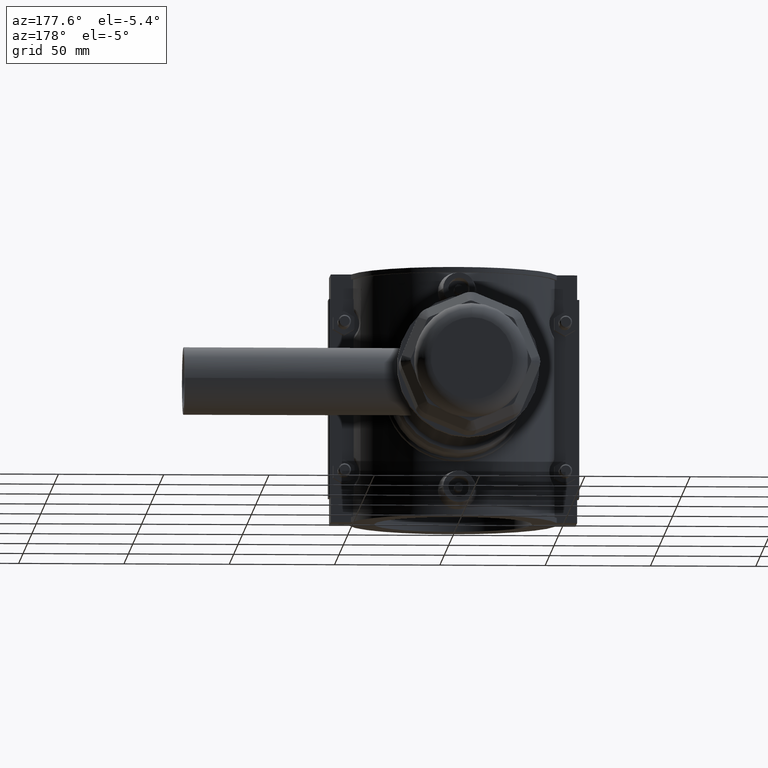
[diagram: clean part render]
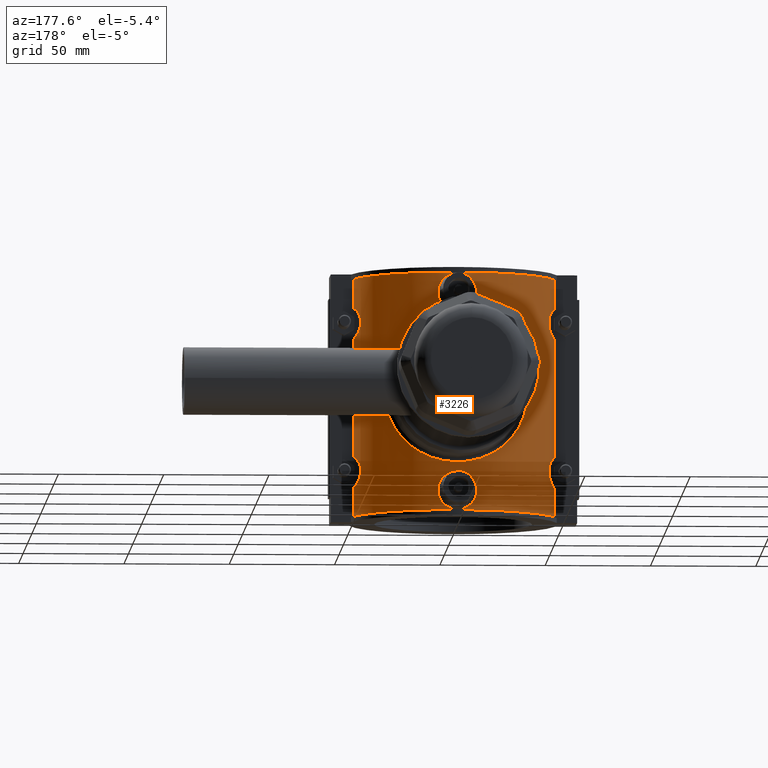
[diagram: same view with one face highlighted and labeled with its STEP entity id]
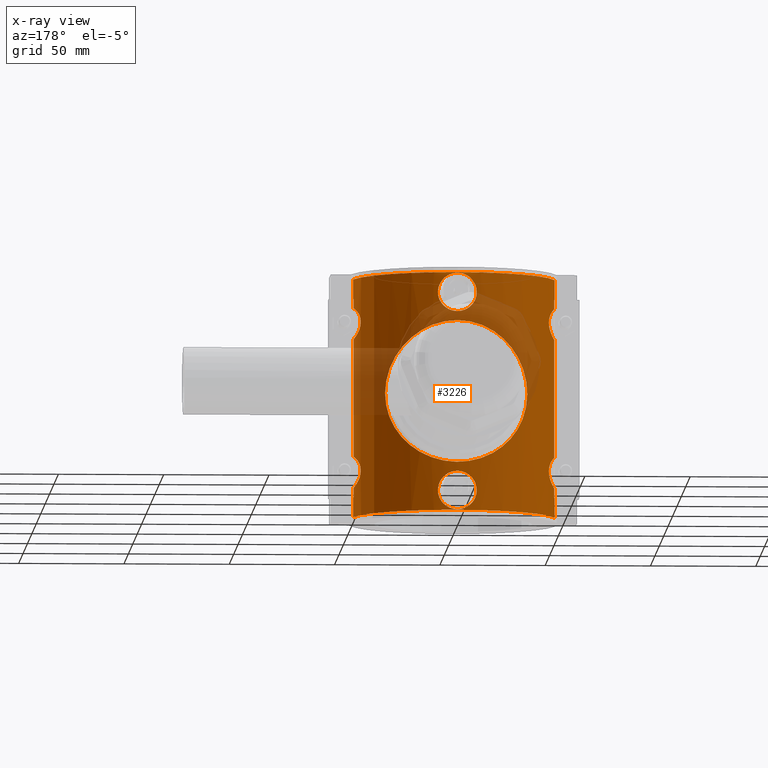
[diagram: x-ray of the same camera — body ghosted, the highlighted face saturated]
A machine part, auxiliary view. The second image highlights one B-rep face of the part: STEP entity #3226.
The next image is the same camera in x-ray: the body ghosted, the highlighted face saturated — about 21% of this face is hidden behind the body in this view.
In plain terms, the highlighted cylindrical surface (partial cylindrical patch) has radius 48.75 mm, axis along (0, 0, 1).
Its self-contained STEP definition (entity closure, byte-faithful):
#112=LINE('',#5452,#399);
#132=LINE('',#5535,#419);
#136=LINE('',#5543,#423);
#137=LINE('',#5547,#424);
#138=LINE('',#5563,#425);
#139=LINE('',#5577,#426);
#140=LINE('',#5580,#427);
#141=LINE('',#5584,#428);
#142=LINE('',#5600,#429);
#143=LINE('',#5614,#430);
#399=VECTOR('',#3977,9.43999999999999);
#419=VECTOR('',#4025,9.43999999999999);
#423=VECTOR('',#4031,9.43999999999999);
#424=VECTOR('',#4034,4.46607892172985);
#425=VECTOR('',#4035,56.1321578434597);
#426=VECTOR('',#4036,4.46607892172984);
#427=VECTOR('',#4039,9.43999999999999);
#428=VECTOR('',#4042,4.46607892172984);
#429=VECTOR('',#4043,56.1321578434597);
#430=VECTOR('',#4044,4.46607892172985);
#640=FACE_BOUND('',#1057,.T.);
#641=FACE_BOUND('',#1058,.T.);
#642=FACE_BOUND('',#1059,.T.);
#688=B_SPLINE_CURVE_WITH_KNOTS('',3,(#5354,#5355,#5356,#5357,#5358,#5359,
#5360,#5361,#5362,#5363,#5364,#5365,#5366,#5367,#5368,#5369,#5370,#5371,
#5372,#5373,#5374,#5375,#5376,#5377,#5378,#5379,#5380,#5381,#5382,#5383,
#5384,#5385,#5386,#5387,#5388,#5389,#5390,#5391,#5392,#5393,#5394,#5395,
#5396,#5397,#5398,#5399,#5400,#5401,#5402,#5403,#5404,#5405,#5406,#5407,
#5408,#5409,#5410,#5411,#5412,#5413,#5414,#5415,#5416,#5417,#5418,#5419),
 .UNSPECIFIED.,.T.,.F.,(4,2,2,2,2,2,2,2,2,2,2,2,2,2,2,2,2,2,2,2,2,2,2,2,
2,2,2,2,2,2,2,2,4),(0.,0.66949136751511,1.33898273503022,2.00847410254533,
2.67796547006044,3.33845650926445,3.99894754846846,4.65943858767247,5.31992962687648,
5.98042066608049,6.64091170528449,7.3014027444885,7.96189378369251,8.63138515120762,
9.30087651872273,9.97036788623784,10.639859253753,11.3093506212681,11.9788419887832,
12.6483333562983,13.3178247238134,13.9783157630174,14.6388068022214,15.2992978414254,
15.9597888806294,16.6202799198334,17.2807709590374,17.9412619982415,18.6017530374455,
19.2712444049606,19.9407357724757,20.6102271399908,21.2797185075059),
 .UNSPECIFIED.);
#691=B_SPLINE_CURVE_WITH_KNOTS('',3,(#5549,#5550,#5551,#5552,#5553,#5554,
#5555,#5556,#5557,#5558,#5559,#5560,#5561),.UNSPECIFIED.,.F.,.F.,(4,1,1,
1,1,1,1,1,1,1,4),(-2.87459084305855,-2.52228414702193,-2.1699774509853,
-1.81767075494868,-1.64151740693037,-1.46536405891206,-1.3772873849029,
-1.28921071089374,-1.11305736287543,-0.760750666838809,-0.408443970802186),
 .UNSPECIFIED.);
#692=B_SPLINE_CURVE_WITH_KNOTS('',3,(#5565,#5566,#5567,#5568,#5569,#5570,
#5571,#5572,#5573,#5574,#5575),.UNSPECIFIED.,.F.,.F.,(4,1,1,1,1,1,1,1,4),
(-2.87459084019103,-2.52228414404224,-2.16997744789344,-1.81767075174464,
-1.64151740367024,-1.46536405559584,-1.11305735944705,-0.76075066329825,
-0.408443967149453),.UNSPECIFIED.);
#693=B_SPLINE_CURVE_WITH_KNOTS('',3,(#5586,#5587,#5588,#5589,#5590,#5591,
#5592,#5593,#5594,#5595,#5596,#5597,#5598),.UNSPECIFIED.,.F.,.F.,(4,1,1,
1,1,1,1,1,1,1,4),(-2.8743224957808,-2.52201581927009,-2.16970914275938,
-1.81740246624867,-1.64124912799332,-1.46509578973796,-1.37701912061029,
-1.28894245148261,-1.11278911322726,-0.760482436716547,-0.408175760205838),
 .UNSPECIFIED.);
#694=B_SPLINE_CURVE_WITH_KNOTS('',3,(#5602,#5603,#5604,#5605,#5606,#5607,
#5608,#5609,#5610,#5611,#5612),.UNSPECIFIED.,.F.,.F.,(4,1,1,1,1,1,1,1,4),
(-2.87458979130142,-2.5222830951395,-2.16997639897759,-1.81766970281568,
-1.64151635473472,-1.46536300665376,-1.11305631049185,-0.760749614329938,
-0.408442918168025),.UNSPECIFIED.);
#695=B_SPLINE_CURVE_WITH_KNOTS('',3,(#5617,#5618,#5619,#5620,#5621,#5622,
#5623,#5624,#5625,#5626,#5627,#5628,#5629,#5630,#5631,#5632,#5633,#5634,
#5635,#5636,#5637,#5638,#5639,#5640,#5641,#5642,#5643,#5644,#5645,#5646,
#5647,#5648,#5649,#5650),.UNSPECIFIED.,.T.,.F.,(4,2,2,2,2,2,2,2,2,2,2,2,
2,2,2,2,4),(0.,0.347008322146705,0.69401664429341,1.04032850766725,1.38664037104109,
1.73295223441493,2.07926409778876,2.42627241993547,2.77328074208217,3.12028906422888,
3.46729738637559,3.81360924974942,4.15992111312326,4.5062329764971,4.85254483987094,
5.19955316201765,5.54656148416435),.UNSPECIFIED.);
#696=B_SPLINE_CURVE_WITH_KNOTS('',3,(#5652,#5653,#5654,#5655,#5656,#5657,
#5658,#5659,#5660,#5661,#5662,#5663,#5664,#5665,#5666,#5667,#5668,#5669,
#5670,#5671,#5672,#5673,#5674,#5675,#5676,#5677,#5678,#5679,#5680,#5681,
#5682,#5683,#5684,#5685),.UNSPECIFIED.,.T.,.F.,(4,2,2,2,2,2,2,2,2,2,2,2,
2,2,2,2,4),(0.,0.347008322146705,0.69401664429341,1.04032850766725,1.38664037104109,
1.73295223441493,2.07926409778876,2.42627241993547,2.77328074208217,3.12028906422888,
3.46729738637559,3.81360924974942,4.15992111312326,4.5062329764971,4.85254483987094,
5.19955316201765,5.54656148416435),.UNSPECIFIED.);
#749=CYLINDRICAL_SURFACE('',#3485,48.75);
#846=FACE_OUTER_BOUND('',#1056,.T.);
#1056=EDGE_LOOP('',(#2408,#2409,#2410,#2411,#2412,#2413,#2414,#2415,#2416,
#2417,#2418,#2419,#2420,#2421,#2422,#2423,#2424,#2425,#2426,#2427));
#1057=EDGE_LOOP('',(#2428));
#1058=EDGE_LOOP('',(#2429));
#1059=EDGE_LOOP('',(#2430));
#1264=CIRCLE('',#3464,48.75);
#1272=CIRCLE('',#3478,48.75);
#1276=CIRCLE('',#3486,48.75);
#1277=CIRCLE('',#3487,48.75);
#1278=CIRCLE('',#3488,48.75);
#1279=CIRCLE('',#3489,48.75);
#1417=VERTEX_POINT('',#5353);
#1422=VERTEX_POINT('',#5430);
#1423=VERTEX_POINT('',#5432);
#1430=VERTEX_POINT('',#5451);
#1450=VERTEX_POINT('',#5518);
#1451=VERTEX_POINT('',#5520);
#1455=VERTEX_POINT('',#5534);
#1458=VERTEX_POINT('',#5542);
#1459=VERTEX_POINT('',#5544);
#1460=VERTEX_POINT('',#5546);
#1461=VERTEX_POINT('',#5548);
#1462=VERTEX_POINT('',#5562);
#1463=VERTEX_POINT('',#5564);
#1464=VERTEX_POINT('',#5576);
#1465=VERTEX_POINT('',#5579);
#1466=VERTEX_POINT('',#5581);
#1467=VERTEX_POINT('',#5583);
#1468=VERTEX_POINT('',#5585);
#1469=VERTEX_POINT('',#5599);
#1470=VERTEX_POINT('',#5601);
#1471=VERTEX_POINT('',#5613);
#1472=VERTEX_POINT('',#5616);
#1473=VERTEX_POINT('',#5651);
#1768=EDGE_CURVE('',#1417,#1417,#688,.T.);
#1775=EDGE_CURVE('',#1422,#1423,#1264,.T.);
#1783=EDGE_CURVE('',#1430,#1422,#112,.T.);
#1806=EDGE_CURVE('',#1451,#1450,#1272,.T.);
#1813=EDGE_CURVE('',#1451,#1455,#132,.T.);
#1817=EDGE_CURVE('',#1458,#1423,#136,.T.);
#1818=EDGE_CURVE('',#1458,#1459,#1276,.T.);
#1819=EDGE_CURVE('',#1459,#1460,#137,.T.);
#1820=EDGE_CURVE('',#1461,#1460,#691,.T.);
#1821=EDGE_CURVE('',#1461,#1462,#138,.T.);
#1822=EDGE_CURVE('',#1463,#1462,#692,.T.);
#1823=EDGE_CURVE('',#1463,#1464,#139,.T.);
#1824=EDGE_CURVE('',#1464,#1455,#1277,.T.);
#1825=EDGE_CURVE('',#1450,#1465,#140,.T.);
#1826=EDGE_CURVE('',#1465,#1466,#1278,.T.);
#1827=EDGE_CURVE('',#1466,#1467,#141,.T.);
#1828=EDGE_CURVE('',#1468,#1467,#693,.T.);
#1829=EDGE_CURVE('',#1468,#1469,#142,.T.);
#1830=EDGE_CURVE('',#1470,#1469,#694,.T.);
#1831=EDGE_CURVE('',#1470,#1471,#143,.T.);
#1832=EDGE_CURVE('',#1471,#1430,#1279,.T.);
#1833=EDGE_CURVE('',#1472,#1472,#695,.T.);
#1834=EDGE_CURVE('',#1473,#1473,#696,.T.);
#2408=ORIENTED_EDGE('',*,*,#1775,.T.);
#2409=ORIENTED_EDGE('',*,*,#1817,.F.);
#2410=ORIENTED_EDGE('',*,*,#1818,.T.);
#2411=ORIENTED_EDGE('',*,*,#1819,.T.);
#2412=ORIENTED_EDGE('',*,*,#1820,.F.);
#2413=ORIENTED_EDGE('',*,*,#1821,.T.);
#2414=ORIENTED_EDGE('',*,*,#1822,.F.);
#2415=ORIENTED_EDGE('',*,*,#1823,.T.);
#2416=ORIENTED_EDGE('',*,*,#1824,.T.);
#2417=ORIENTED_EDGE('',*,*,#1813,.F.);
#2418=ORIENTED_EDGE('',*,*,#1806,.T.);
#2419=ORIENTED_EDGE('',*,*,#1825,.T.);
#2420=ORIENTED_EDGE('',*,*,#1826,.T.);
#2421=ORIENTED_EDGE('',*,*,#1827,.T.);
#2422=ORIENTED_EDGE('',*,*,#1828,.F.);
#2423=ORIENTED_EDGE('',*,*,#1829,.T.);
#2424=ORIENTED_EDGE('',*,*,#1830,.F.);
#2425=ORIENTED_EDGE('',*,*,#1831,.T.);
#2426=ORIENTED_EDGE('',*,*,#1832,.T.);
#2427=ORIENTED_EDGE('',*,*,#1783,.T.);
#2428=ORIENTED_EDGE('',*,*,#1768,.T.);
#2429=ORIENTED_EDGE('',*,*,#1833,.T.);
#2430=ORIENTED_EDGE('',*,*,#1834,.T.);
#3226=ADVANCED_FACE('',(#846,#640,#641,#642),#749,.T.);
#3464=AXIS2_PLACEMENT_3D('',#5434,#3959,#3960);
#3478=AXIS2_PLACEMENT_3D('',#5521,#4008,#4009);
#3485=AXIS2_PLACEMENT_3D('',#5541,#4029,#4030);
#3486=AXIS2_PLACEMENT_3D('',#5545,#4032,#4033);
#3487=AXIS2_PLACEMENT_3D('',#5578,#4037,#4038);
#3488=AXIS2_PLACEMENT_3D('',#5582,#4040,#4041);
#3489=AXIS2_PLACEMENT_3D('',#5615,#4045,#4046);
#3959=DIRECTION('center_axis',(0.,0.,1.));
#3960=DIRECTION('ref_axis',(1.,0.,0.));
#3977=DIRECTION('',(0.,0.,-1.));
#4008=DIRECTION('center_axis',(0.,0.,-1.));
#4009=DIRECTION('ref_axis',(1.,0.,0.));
#4025=DIRECTION('',(0.,0.,-1.));
#4029=DIRECTION('center_axis',(0.,0.,1.));
#4030=DIRECTION('ref_axis',(1.,0.,0.));
#4031=DIRECTION('',(0.,0.,-1.));
#4032=DIRECTION('center_axis',(0.,0.,-1.));
#4033=DIRECTION('ref_axis',(1.,0.,0.));
#4034=DIRECTION('',(0.,0.,1.));
#4035=DIRECTION('',(0.,0.,1.));
#4036=DIRECTION('',(0.,0.,1.));
#4037=DIRECTION('center_axis',(0.,0.,1.));
#4038=DIRECTION('ref_axis',(1.,0.,0.));
#4039=DIRECTION('',(0.,0.,-1.));
#4040=DIRECTION('center_axis',(0.,0.,1.));
#4041=DIRECTION('ref_axis',(1.,0.,0.));
#4042=DIRECTION('',(0.,0.,-1.));
#4043=DIRECTION('',(0.,0.,-1.));
#4044=DIRECTION('',(0.,0.,-1.));
#4045=DIRECTION('center_axis',(0.,0.,-1.));
#4046=DIRECTION('ref_axis',(1.,0.,0.));
#5353=CARTESIAN_POINT('',(33.75,35.1781181986757,-5.55111512312578E-16));
#5354=CARTESIAN_POINT('Ctrl Pts',(33.75,35.1781181986757,-5.55111512312578E-16));
#5355=CARTESIAN_POINT('Ctrl Pts',(33.75,35.1781181986757,2.23163789171703));
#5356=CARTESIAN_POINT('Ctrl Pts',(33.5258273656623,35.397085466947,4.49151617250992));
#5357=CARTESIAN_POINT('Ctrl Pts',(32.6294420572291,36.2250502704398,8.91483782791294));
#5358=CARTESIAN_POINT('Ctrl Pts',(31.9577845720507,36.8311558207437,11.0789345238227));
#5359=CARTESIAN_POINT('Ctrl Pts',(30.220746484383,38.269312058481,15.1904445261252));
#5360=CARTESIAN_POINT('Ctrl Pts',(29.1538601046408,39.100364315089,17.1422144696961));
#5361=CARTESIAN_POINT('Ctrl Pts',(26.7096027002226,40.8091064843703,20.7460887840739));
#5362=CARTESIAN_POINT('Ctrl Pts',(25.3315218280741,41.6857960777982,22.3981859020178));
#5363=CARTESIAN_POINT('Ctrl Pts',(22.4179030990291,43.3215149632454,25.3118046310629));
#5364=CARTESIAN_POINT('Ctrl Pts',(20.7765940363365,44.1443561797296,26.6860538967047));
#5365=CARTESIAN_POINT('Ctrl Pts',(17.1718395547205,45.6674826166403,29.1365793982692));
#5366=CARTESIAN_POINT('Ctrl Pts',(15.2081447923302,46.3669612134862,30.2129901298313));
#5367=CARTESIAN_POINT('Ctrl Pts',(11.0682429104268,47.5255382169498,31.9625794236075));
#5368=CARTESIAN_POINT('Ctrl Pts',(8.88754897422973,47.9852179352779,32.6372049028866));
#5369=CARTESIAN_POINT('Ctrl Pts',(4.45430746837356,48.5976214652335,33.5311022136247));
#5370=CARTESIAN_POINT('Ctrl Pts',(2.2016367973467,48.75,33.75));
#5371=CARTESIAN_POINT('Ctrl Pts',(-2.2016367973467,48.75,33.75));
#5372=CARTESIAN_POINT('Ctrl Pts',(-4.45430746837355,48.5976214652335,33.5311022136247));
#5373=CARTESIAN_POINT('Ctrl Pts',(-8.88754897422973,47.9852179352779,32.6372049028866));
#5374=CARTESIAN_POINT('Ctrl Pts',(-11.0682429104268,47.5255382169498,31.9625794236075));
#5375=CARTESIAN_POINT('Ctrl Pts',(-15.2081447923302,46.3669612134862,30.2129901298313));
#5376=CARTESIAN_POINT('Ctrl Pts',(-17.1718395547205,45.6674826166403,29.1365793982692));
#5377=CARTESIAN_POINT('Ctrl Pts',(-20.7765940363365,44.1443561797296,26.6860538967047));
#5378=CARTESIAN_POINT('Ctrl Pts',(-22.4179030990291,43.3215149632454,25.3118046310629));
#5379=CARTESIAN_POINT('Ctrl Pts',(-25.3315218280741,41.6857960777982,22.3981859020178));
#5380=CARTESIAN_POINT('Ctrl Pts',(-26.7096027002226,40.8091064843703,20.7460887840739));
#5381=CARTESIAN_POINT('Ctrl Pts',(-29.1538601046408,39.100364315089,17.1422144696961));
#5382=CARTESIAN_POINT('Ctrl Pts',(-30.220746484383,38.269312058481,15.1904445261252));
#5383=CARTESIAN_POINT('Ctrl Pts',(-31.9577845720507,36.8311558207437,11.0789345238227));
#5384=CARTESIAN_POINT('Ctrl Pts',(-32.6294420572291,36.2250502704398,8.91483782791294));
#5385=CARTESIAN_POINT('Ctrl Pts',(-33.5258273656623,35.397085466947,4.49151617250992));
#5386=CARTESIAN_POINT('Ctrl Pts',(-33.75,35.1781181986757,2.23163789171704));
#5387=CARTESIAN_POINT('Ctrl Pts',(-33.75,35.1781181986757,-2.23163789171704));
#5388=CARTESIAN_POINT('Ctrl Pts',(-33.5258273656623,35.397085466947,-4.49151617250992));
#5389=CARTESIAN_POINT('Ctrl Pts',(-32.6294420572291,36.2250502704398,-8.91483782791294));
#5390=CARTESIAN_POINT('Ctrl Pts',(-31.9577845720507,36.8311558207437,-11.0789345238227));
#5391=CARTESIAN_POINT('Ctrl Pts',(-30.220746484383,38.269312058481,-15.1904445261252));
#5392=CARTESIAN_POINT('Ctrl Pts',(-29.1538601046408,39.100364315089,-17.1422144696961));
#5393=CARTESIAN_POINT('Ctrl Pts',(-26.7096027002226,40.8091064843703,-20.7460887840739));
#5394=CARTESIAN_POINT('Ctrl Pts',(-25.3315218280741,41.6857960777982,-22.3981859020178));
#5395=CARTESIAN_POINT('Ctrl Pts',(-22.4179030990291,43.3215149632454,-25.3118046310629));
#5396=CARTESIAN_POINT('Ctrl Pts',(-20.7765940363365,44.1443561797296,-26.6860538967047));
#5397=CARTESIAN_POINT('Ctrl Pts',(-17.1718395547205,45.6674826166403,-29.1365793982692));
#5398=CARTESIAN_POINT('Ctrl Pts',(-15.2081447923302,46.3669612134862,-30.2129901298313));
#5399=CARTESIAN_POINT('Ctrl Pts',(-11.0682429104268,47.5255382169498,-31.9625794236075));
#5400=CARTESIAN_POINT('Ctrl Pts',(-8.88754897422973,47.9852179352779,-32.6372049028866));
#5401=CARTESIAN_POINT('Ctrl Pts',(-4.45430746837356,48.5976214652335,-33.5311022136247));
#5402=CARTESIAN_POINT('Ctrl Pts',(-2.2016367973467,48.75,-33.75));
#5403=CARTESIAN_POINT('Ctrl Pts',(2.20163679734668,48.75,-33.75));
#5404=CARTESIAN_POINT('Ctrl Pts',(4.45430746837354,48.5976214652335,-33.5311022136248));
#5405=CARTESIAN_POINT('Ctrl Pts',(8.88754897422971,47.9852179352779,-32.6372049028866));
#5406=CARTESIAN_POINT('Ctrl Pts',(11.0682429104268,47.5255382169498,-31.9625794236075));
#5407=CARTESIAN_POINT('Ctrl Pts',(15.2081447923302,46.3669612134862,-30.2129901298313));
#5408=CARTESIAN_POINT('Ctrl Pts',(17.1718395547205,45.6674826166403,-29.1365793982692));
#5409=CARTESIAN_POINT('Ctrl Pts',(20.7765940363365,44.1443561797296,-26.6860538967047));
#5410=CARTESIAN_POINT('Ctrl Pts',(22.4179030990291,43.3215149632454,-25.3118046310629));
#5411=CARTESIAN_POINT('Ctrl Pts',(25.3315218280741,41.6857960777982,-22.3981859020178));
#5412=CARTESIAN_POINT('Ctrl Pts',(26.7096027002226,40.8091064843703,-20.7460887840739));
#5413=CARTESIAN_POINT('Ctrl Pts',(29.1538601046408,39.100364315089,-17.1422144696961));
#5414=CARTESIAN_POINT('Ctrl Pts',(30.220746484383,38.2693120584811,-15.1904445261252));
#5415=CARTESIAN_POINT('Ctrl Pts',(31.9577845720507,36.8311558207438,-11.0789345238227));
#5416=CARTESIAN_POINT('Ctrl Pts',(32.6294420572291,36.2250502704398,-8.91483782791296));
#5417=CARTESIAN_POINT('Ctrl Pts',(33.5258273656623,35.397085466947,-4.49151617250992));
#5418=CARTESIAN_POINT('Ctrl Pts',(33.75,35.1781181986757,-2.23163789171704));
#5419=CARTESIAN_POINT('Ctrl Pts',(33.75,35.1781181986757,0.));
#5430=CARTESIAN_POINT('',(47.840065583149,9.375,-56.64));
#5432=CARTESIAN_POINT('',(-47.840065583149,9.375,-56.64));
#5434=CARTESIAN_POINT('Origin',(0.,0.,-56.64));
#5451=CARTESIAN_POINT('',(47.840065583149,9.37500000000005,-47.2));
#5452=CARTESIAN_POINT('',(47.840065583149,9.375,0.));
#5518=CARTESIAN_POINT('',(47.840065583149,9.375,56.64));
#5520=CARTESIAN_POINT('',(-47.840065583149,9.375,56.64));
#5521=CARTESIAN_POINT('Origin',(0.,0.,56.64));
#5534=CARTESIAN_POINT('',(-47.840065583149,9.37500000000005,47.2));
#5535=CARTESIAN_POINT('',(-47.840065583149,9.375,0.));
#5541=CARTESIAN_POINT('Origin',(0.,0.,0.));
#5542=CARTESIAN_POINT('',(-47.840065583149,9.37500000000005,-47.2));
#5543=CARTESIAN_POINT('',(-47.840065583149,9.375,0.));
#5544=CARTESIAN_POINT('',(-47.6332013935658,10.3750000000001,-47.2));
#5545=CARTESIAN_POINT('Origin',(0.,0.,-47.2));
#5546=CARTESIAN_POINT('',(-47.6332013935658,10.3750000000001,-42.7339210782702));
#5547=CARTESIAN_POINT('',(-47.6332013935658,10.3750000000001,0.));
#5548=CARTESIAN_POINT('',(-47.6332013935658,10.3750000000001,-28.0660789217298));
#5549=CARTESIAN_POINT('Ctrl Pts',(-47.6332013935658,10.3750000000001,-28.0660789217299));
#5550=CARTESIAN_POINT('Ctrl Pts',(-47.3707411371956,11.5799949156133,-28.3478910010709));
#5551=CARTESIAN_POINT('Ctrl Pts',(-46.7591439762904,13.9397165960378,-29.0596355429508));
#5552=CARTESIAN_POINT('Ctrl Pts',(-45.6781511256995,17.1285574318329,-30.7535870925713));
#5553=CARTESIAN_POINT('Ctrl Pts',(-44.845199936479,19.1257155346836,-33.0478293809434));
#5554=CARTESIAN_POINT('Ctrl Pts',(-44.6341717368633,19.6035837760338,-35.4032558827374));
#5555=CARTESIAN_POINT('Ctrl Pts',(-44.7656401551142,19.3056650012819,-36.8655638422986));
#5556=CARTESIAN_POINT('Ctrl Pts',(-44.9873124326596,18.7826369829135,-37.9200730794652));
#5557=CARTESIAN_POINT('Ctrl Pts',(-45.2658594050571,18.1060488696108,-38.8846800678086));
#5558=CARTESIAN_POINT('Ctrl Pts',(-45.8540866065381,16.6044239413667,-40.3213962629329));
#5559=CARTESIAN_POINT('Ctrl Pts',(-46.7625544090056,13.9338916945779,-41.7445290005529));
#5560=CARTESIAN_POINT('Ctrl Pts',(-47.3707411371956,11.5799949156133,-42.4521089989292));
#5561=CARTESIAN_POINT('Ctrl Pts',(-47.6332013935658,10.3750000000001,-42.7339210782702));
#5562=CARTESIAN_POINT('',(-47.6332013935658,10.3750000000001,28.0660789217298));
#5563=CARTESIAN_POINT('',(-47.6332013935658,10.3750000000001,0.));
#5564=CARTESIAN_POINT('',(-47.6332013935658,10.3750000000001,42.7339210782702));
#5565=CARTESIAN_POINT('Ctrl Pts',(-47.6332013935658,10.3750000000001,42.7339210782702));
#5566=CARTESIAN_POINT('Ctrl Pts',(-47.3707411372212,11.5799949154958,42.4521089989566));
#5567=CARTESIAN_POINT('Ctrl Pts',(-46.7594357893124,13.9391826712528,41.7402142120835));
#5568=CARTESIAN_POINT('Ctrl Pts',(-45.6753129022962,17.1335994172813,40.0408174482457));
#5569=CARTESIAN_POINT('Ctrl Pts',(-44.8487501314828,19.119467834316,37.755929303072));
#5570=CARTESIAN_POINT('Ctrl Pts',(-44.6339426843462,19.6040322566163,35.401974456081));
#5571=CARTESIAN_POINT('Ctrl Pts',(-44.8463401132177,19.1237279268658,33.0513108229631));
#5572=CARTESIAN_POINT('Ctrl Pts',(-45.6780309889756,17.1287901369086,30.7530162843271));
#5573=CARTESIAN_POINT('Ctrl Pts',(-46.7594331446426,13.9392153585269,29.0604686815619));
#5574=CARTESIAN_POINT('Ctrl Pts',(-47.3707411372212,11.5799949154958,28.3478910010434));
#5575=CARTESIAN_POINT('Ctrl Pts',(-47.6332013935658,10.3750000000001,28.0660789217298));
#5576=CARTESIAN_POINT('',(-47.6332013935658,10.3750000000001,47.2));
#5577=CARTESIAN_POINT('',(-47.6332013935658,10.3750000000001,0.));
#5578=CARTESIAN_POINT('Origin',(0.,0.,47.2));
#5579=CARTESIAN_POINT('',(47.840065583149,9.37500000000005,47.2));
#5580=CARTESIAN_POINT('',(47.840065583149,9.375,0.));
#5581=CARTESIAN_POINT('',(47.6332013935658,10.3750000000001,47.2));
#5582=CARTESIAN_POINT('Origin',(0.,0.,47.2));
#5583=CARTESIAN_POINT('',(47.6332013935658,10.3750000000001,42.7339210782702));
#5584=CARTESIAN_POINT('',(47.6332013935658,10.3750000000001,0.));
#5585=CARTESIAN_POINT('',(47.6332013935658,10.3750000000001,28.0660789217298));
#5586=CARTESIAN_POINT('Ctrl Pts',(47.6332013935658,10.3750000000001,28.0660789217298));
#5587=CARTESIAN_POINT('Ctrl Pts',(47.3707412717028,11.5799942980705,28.3478908566461));
#5588=CARTESIAN_POINT('Ctrl Pts',(46.7591439119784,13.9397169137553,29.0596355887907));
#5589=CARTESIAN_POINT('Ctrl Pts',(45.6781509693288,17.1285578123634,30.7535873950285));
#5590=CARTESIAN_POINT('Ctrl Pts',(44.8451999233378,19.1257155674928,33.0478294995023));
#5591=CARTESIAN_POINT('Ctrl Pts',(44.6341717322951,19.6035837891255,35.4032558981873));
#5592=CARTESIAN_POINT('Ctrl Pts',(44.7656401448172,19.305665027047,36.8655637615618));
#5593=CARTESIAN_POINT('Ctrl Pts',(44.9873123973617,18.7826370684512,37.9200729539132));
#5594=CARTESIAN_POINT('Ctrl Pts',(45.2658593507891,18.1060490076676,38.884679913003));
#5595=CARTESIAN_POINT('Ctrl Pts',(45.8540864873858,16.6044242499529,40.3213960428862));
#5596=CARTESIAN_POINT('Ctrl Pts',(46.7625543147274,13.933892090444,41.7445289053844));
#5597=CARTESIAN_POINT('Ctrl Pts',(47.3707412717028,11.5799942980705,42.4521091433539));
#5598=CARTESIAN_POINT('Ctrl Pts',(47.6332013935658,10.3750000000001,42.7339210782702));
#5599=CARTESIAN_POINT('',(47.6332013935658,10.3750000000001,-28.0660789217298));
#5600=CARTESIAN_POINT('',(47.6332013935658,10.3750000000001,0.));
#5601=CARTESIAN_POINT('',(47.6332013935658,10.3750000000001,-42.7339210782702));
#5602=CARTESIAN_POINT('Ctrl Pts',(47.6332013935658,10.3750000000001,-42.7339210782702));
#5603=CARTESIAN_POINT('Ctrl Pts',(47.3707411377668,11.5799949129908,-42.4521089995425));
#5604=CARTESIAN_POINT('Ctrl Pts',(46.7594357905263,13.9391826675488,-41.740214213872));
#5605=CARTESIAN_POINT('Ctrl Pts',(45.6753129017057,17.1335994192055,-40.0408174475072));
#5606=CARTESIAN_POINT('Ctrl Pts',(44.8487501315926,19.1194678340049,-37.7559293032827));
#5607=CARTESIAN_POINT('Ctrl Pts',(44.6339426842167,19.6040322570483,-35.4019744561363));
#5608=CARTESIAN_POINT('Ctrl Pts',(44.8463401133007,19.123727926638,-33.0513108228232));
#5609=CARTESIAN_POINT('Ctrl Pts',(45.6780309884406,17.1287901386686,-30.7530162849799));
#5610=CARTESIAN_POINT('Ctrl Pts',(46.7594331458257,13.9392153549199,-29.0604686798281));
#5611=CARTESIAN_POINT('Ctrl Pts',(47.3707411377668,11.5799949129908,-28.3478910004575));
#5612=CARTESIAN_POINT('Ctrl Pts',(47.6332013935658,10.3750000000001,-28.0660789217298));
#5613=CARTESIAN_POINT('',(47.6332013935658,10.3750000000001,-47.2));
#5614=CARTESIAN_POINT('',(47.6332013935658,10.3750000000001,0.));
#5615=CARTESIAN_POINT('Origin',(0.,0.,-47.2));
#5616=CARTESIAN_POINT('',(9.2173419643886,47.8706915253114,-47.2));
#5617=CARTESIAN_POINT('Ctrl Pts',(9.2173419643886,47.8706915253114,-47.2));
#5618=CARTESIAN_POINT('Ctrl Pts',(9.2173419643886,47.8706915253114,-46.0433055928443));
#5619=CARTESIAN_POINT('Ctrl Pts',(8.98234902795153,47.9177619174684,-44.8126981533247));
#5620=CARTESIAN_POINT('Ctrl Pts',(8.03380907708543,48.0858857389849,-42.5557666584694));
#5621=CARTESIAN_POINT('Ctrl Pts',(7.32047741248681,48.2043265249315,-41.5291582448232));
#5622=CARTESIAN_POINT('Ctrl Pts',(5.68282698567005,48.4246757336249,-39.9134295231966));
#5623=CARTESIAN_POINT('Ctrl Pts',(4.64904941468983,48.5410868257842,-39.2147463178761));
#5624=CARTESIAN_POINT('Ctrl Pts',(2.38492442190629,48.7048550538957,-38.2877707989113));
#5625=CARTESIAN_POINT('Ctrl Pts',(1.1543728779128,48.75,-38.0595875588889));
#5626=CARTESIAN_POINT('Ctrl Pts',(-1.1543728779128,48.75,-38.0595875588889));
#5627=CARTESIAN_POINT('Ctrl Pts',(-2.38492442190629,48.7048550538957,-38.2877707989113));
#5628=CARTESIAN_POINT('Ctrl Pts',(-4.64904941468984,48.5410868257842,-39.2147463178761));
#5629=CARTESIAN_POINT('Ctrl Pts',(-5.68282698567005,48.4246757336249,-39.9134295231966));
#5630=CARTESIAN_POINT('Ctrl Pts',(-7.32047741248681,48.2043265249315,-41.5291582448232));
#5631=CARTESIAN_POINT('Ctrl Pts',(-8.03380907708543,48.0858857389849,-42.5557666584694));
#5632=CARTESIAN_POINT('Ctrl Pts',(-8.98234902795153,47.9177619174684,-44.8126981533247));
#5633=CARTESIAN_POINT('Ctrl Pts',(-9.2173419643886,47.8706915253114,-46.0433055928443));
#5634=CARTESIAN_POINT('Ctrl Pts',(-9.2173419643886,47.8706915253114,-48.3566944071557));
#5635=CARTESIAN_POINT('Ctrl Pts',(-8.98234902795153,47.9177619174684,-49.5873018466754));
#5636=CARTESIAN_POINT('Ctrl Pts',(-8.03380907708542,48.0858857389849,-51.8442333415306));
#5637=CARTESIAN_POINT('Ctrl Pts',(-7.32047741248681,48.2043265249315,-52.8708417551769));
#5638=CARTESIAN_POINT('Ctrl Pts',(-5.68282698567005,48.4246757336249,-54.4865704768034));
#5639=CARTESIAN_POINT('Ctrl Pts',(-4.64904941468983,48.5410868257842,-55.1852536821239));
#5640=CARTESIAN_POINT('Ctrl Pts',(-2.38492442190628,48.7048550538957,-56.1122292010888));
#5641=CARTESIAN_POINT('Ctrl Pts',(-1.1543728779128,48.75,-56.3404124411111));
#5642=CARTESIAN_POINT('Ctrl Pts',(1.15437287791279,48.75,-56.3404124411111));
#5643=CARTESIAN_POINT('Ctrl Pts',(2.38492442190628,48.7048550538957,-56.1122292010888));
#5644=CARTESIAN_POINT('Ctrl Pts',(4.64904941468983,48.5410868257842,-55.1852536821239));
#5645=CARTESIAN_POINT('Ctrl Pts',(5.68282698567004,48.4246757336249,-54.4865704768034));
#5646=CARTESIAN_POINT('Ctrl Pts',(7.32047741248681,48.2043265249315,-52.8708417551769));
#5647=CARTESIAN_POINT('Ctrl Pts',(8.03380907708543,48.0858857389849,-51.8442333415306));
#5648=CARTESIAN_POINT('Ctrl Pts',(8.98234902795153,47.9177619174684,-49.5873018466754));
#5649=CARTESIAN_POINT('Ctrl Pts',(9.2173419643886,47.8706915253114,-48.3566944071557));
#5650=CARTESIAN_POINT('Ctrl Pts',(9.2173419643886,47.8706915253114,-47.2));
#5651=CARTESIAN_POINT('',(9.2173419643886,47.8706915253114,47.2));
#5652=CARTESIAN_POINT('Ctrl Pts',(-9.2173419643886,47.8706915253114,47.2));
#5653=CARTESIAN_POINT('Ctrl Pts',(-9.2173419643886,47.8706915253114,46.0433055928443));
#5654=CARTESIAN_POINT('Ctrl Pts',(-8.98234902795153,47.9177619174684,44.8126981533247));
#5655=CARTESIAN_POINT('Ctrl Pts',(-8.03380907708543,48.0858857389849,42.5557666584694));
#5656=CARTESIAN_POINT('Ctrl Pts',(-7.32047741248681,48.2043265249315,41.5291582448232));
#5657=CARTESIAN_POINT('Ctrl Pts',(-5.68282698567005,48.4246757336249,39.9134295231966));
#5658=CARTESIAN_POINT('Ctrl Pts',(-4.64904941468983,48.5410868257842,39.2147463178761));
#5659=CARTESIAN_POINT('Ctrl Pts',(-2.38492442190629,48.7048550538957,38.2877707989113));
#5660=CARTESIAN_POINT('Ctrl Pts',(-1.1543728779128,48.75,38.0595875588889));
#5661=CARTESIAN_POINT('Ctrl Pts',(1.1543728779128,48.75,38.0595875588889));
#5662=CARTESIAN_POINT('Ctrl Pts',(2.38492442190629,48.7048550538957,38.2877707989113));
#5663=CARTESIAN_POINT('Ctrl Pts',(4.64904941468984,48.5410868257842,39.2147463178761));
#5664=CARTESIAN_POINT('Ctrl Pts',(5.68282698567005,48.4246757336249,39.9134295231966));
#5665=CARTESIAN_POINT('Ctrl Pts',(7.32047741248681,48.2043265249315,41.5291582448232));
#5666=CARTESIAN_POINT('Ctrl Pts',(8.03380907708543,48.0858857389849,42.5557666584694));
#5667=CARTESIAN_POINT('Ctrl Pts',(8.98234902795153,47.9177619174684,44.8126981533247));
#5668=CARTESIAN_POINT('Ctrl Pts',(9.2173419643886,47.8706915253114,46.0433055928443));
#5669=CARTESIAN_POINT('Ctrl Pts',(9.2173419643886,47.8706915253114,48.3566944071557));
#5670=CARTESIAN_POINT('Ctrl Pts',(8.98234902795153,47.9177619174684,49.5873018466754));
#5671=CARTESIAN_POINT('Ctrl Pts',(8.03380907708542,48.0858857389849,51.8442333415306));
#5672=CARTESIAN_POINT('Ctrl Pts',(7.32047741248681,48.2043265249315,52.8708417551769));
#5673=CARTESIAN_POINT('Ctrl Pts',(5.68282698567005,48.4246757336249,54.4865704768034));
#5674=CARTESIAN_POINT('Ctrl Pts',(4.64904941468983,48.5410868257842,55.1852536821239));
#5675=CARTESIAN_POINT('Ctrl Pts',(2.38492442190628,48.7048550538957,56.1122292010888));
#5676=CARTESIAN_POINT('Ctrl Pts',(1.1543728779128,48.75,56.3404124411111));
#5677=CARTESIAN_POINT('Ctrl Pts',(-1.15437287791279,48.75,56.3404124411111));
#5678=CARTESIAN_POINT('Ctrl Pts',(-2.38492442190628,48.7048550538957,56.1122292010888));
#5679=CARTESIAN_POINT('Ctrl Pts',(-4.64904941468983,48.5410868257842,55.1852536821239));
#5680=CARTESIAN_POINT('Ctrl Pts',(-5.68282698567005,48.4246757336249,54.4865704768034));
#5681=CARTESIAN_POINT('Ctrl Pts',(-7.32047741248681,48.2043265249315,52.8708417551769));
#5682=CARTESIAN_POINT('Ctrl Pts',(-8.03380907708543,48.0858857389849,51.8442333415306));
#5683=CARTESIAN_POINT('Ctrl Pts',(-8.98234902795153,47.9177619174684,49.5873018466754));
#5684=CARTESIAN_POINT('Ctrl Pts',(-9.2173419643886,47.8706915253114,48.3566944071557));
#5685=CARTESIAN_POINT('Ctrl Pts',(-9.2173419643886,47.8706915253114,47.2));